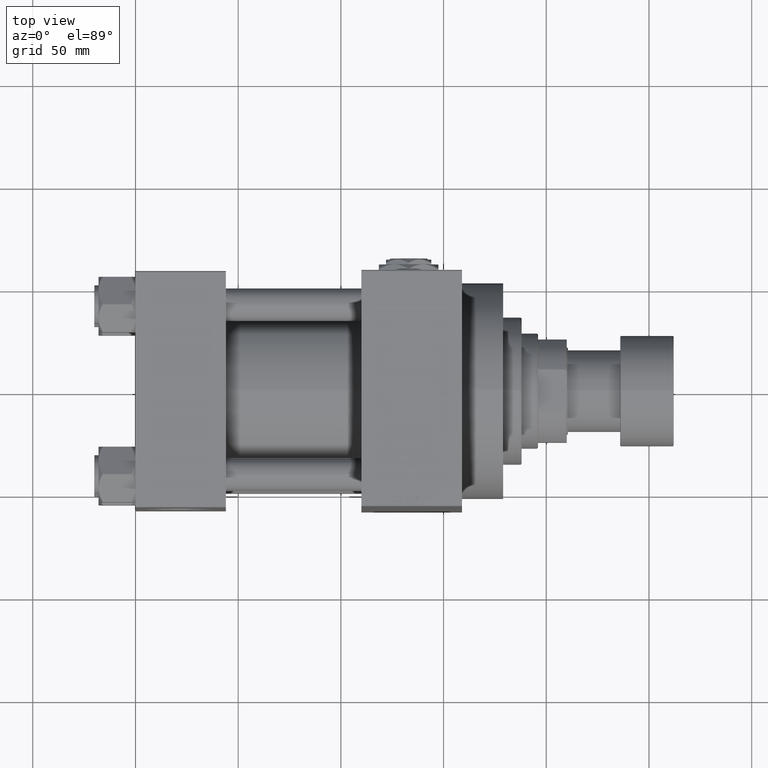
[diagram: clean part render]
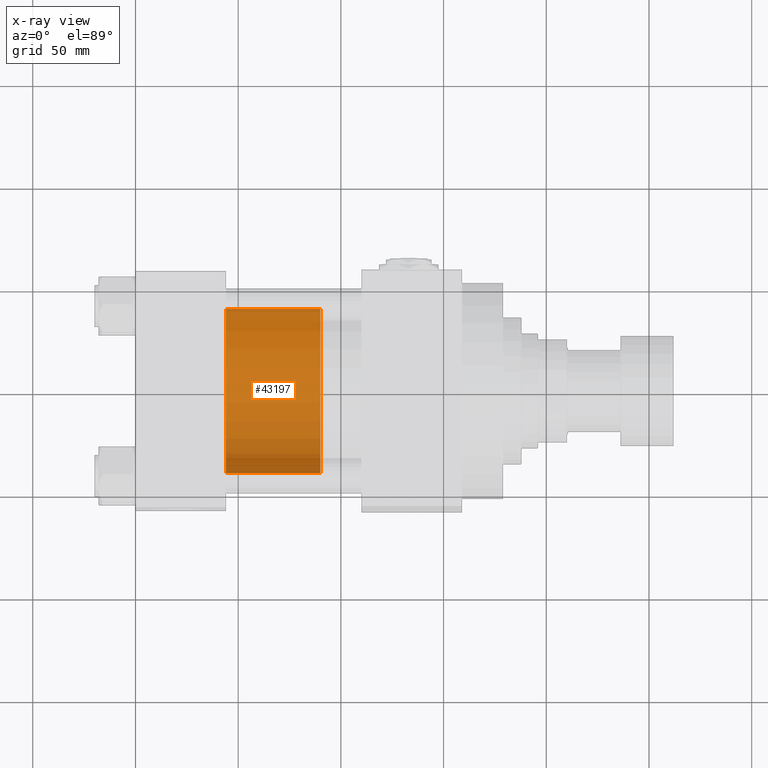
[diagram: x-ray — body ghosted, one internal face saturated and labeled with its STEP entity id]
A machine part, top view, then the same camera in x-ray: the body is ghosted and one INTERNAL B-rep face — a face not visible from any outside direction — is saturated and labeled: STEP entity #43197.
In plain terms, the highlighted cylindrical surface (partial cylindrical patch) has radius 40 mm, axis along (-1, 0, 0).
Its self-contained STEP definition (entity closure, byte-faithful):
#3402 = VECTOR ( 'NONE', #5607, 1000.000000000000000 ) ;
#4189 = DIRECTION ( 'NONE',  ( 0.000000000000000000, 0.000000000000000000, 1.000000000000000000 ) ) ;
#4782 = EDGE_CURVE ( 'NONE', #31541, #35425, #18306, .T. ) ;
#5051 = CARTESIAN_POINT ( 'NONE',  ( 0.000000000000000000, 0.000000000000000000, 46.00000000000000000 ) ) ;
#5607 = DIRECTION ( 'NONE',  ( -0.000000000000000000, -0.000000000000000000, -1.000000000000000000 ) ) ;
#5726 = VERTEX_POINT ( 'NONE', #45398 ) ;
#6033 = CARTESIAN_POINT ( 'NONE',  ( -40.00000000000000000, 0.000000000000000000, 46.00000000000000000 ) ) ;
#8475 = DIRECTION ( 'NONE',  ( 1.000000000000000000, 0.000000000000000000, 0.000000000000000000 ) ) ;
#8770 = EDGE_CURVE ( 'NONE', #5726, #31541, #44770, .T. ) ;
#8833 = CYLINDRICAL_SURFACE ( 'NONE', #36924, 40.00000000000000000 ) ;
#10197 = CIRCLE ( 'NONE', #27001, 40.00000000000000000 ) ;
#11528 = CARTESIAN_POINT ( 'NONE',  ( 40.00000000000000000, 4.898587196589413026E-15, 0.000000000000000000 ) ) ;
#11705 = VERTEX_POINT ( 'NONE', #11528 ) ;
#12068 = DIRECTION ( 'NONE',  ( 0.000000000000000000, 0.000000000000000000, 1.000000000000000000 ) ) ;
#13053 = DIRECTION ( 'NONE',  ( 1.000000000000000000, 0.000000000000000000, 0.000000000000000000 ) ) ;
#15221 = ORIENTED_EDGE ( 'NONE', *, *, #4782, .F. ) ;
#18306 = LINE ( 'NONE', #6033, #32589 ) ;
#20115 = CARTESIAN_POINT ( 'NONE',  ( -40.00000000000000000, 0.000000000000000000, 46.00000000000000000 ) ) ;
#20350 = DIRECTION ( 'NONE',  ( -1.000000000000000000, 0.000000000000000000, 0.000000000000000000 ) ) ;
#20665 = LINE ( 'NONE', #47500, #3402 ) ;
#23754 = CARTESIAN_POINT ( 'NONE',  ( 0.000000000000000000, 0.000000000000000000, 0.000000000000000000 ) ) ;
#24364 = DIRECTION ( 'NONE',  ( -0.000000000000000000, -0.000000000000000000, -1.000000000000000000 ) ) ;
#25843 = ORIENTED_EDGE ( 'NONE', *, *, #46247, .T. ) ;
#27001 = AXIS2_PLACEMENT_3D ( 'NONE', #23754, #4189, #8475 ) ;
#27604 = CARTESIAN_POINT ( 'NONE',  ( 0.000000000000000000, 0.000000000000000000, 46.00000000000000000 ) ) ;
#31541 = VERTEX_POINT ( 'NONE', #20115 ) ;
#32589 = VECTOR ( 'NONE', #44653, 1000.000000000000000 ) ;
#34471 = EDGE_CURVE ( 'NONE', #11705, #35425, #10197, .T. ) ;
#35425 = VERTEX_POINT ( 'NONE', #44261 ) ;
#36924 = AXIS2_PLACEMENT_3D ( 'NONE', #5051, #24364, #20350 ) ;
#42935 = FACE_OUTER_BOUND ( 'NONE', #46249, .T. ) ;
#43197 = ADVANCED_FACE ( 'NONE', ( #42935 ), #8833, .T. ) ;
#43354 = ORIENTED_EDGE ( 'NONE', *, *, #8770, .F. ) ;
#44261 = CARTESIAN_POINT ( 'NONE',  ( -40.00000000000000000, 0.000000000000000000, 0.000000000000000000 ) ) ;
#44653 = DIRECTION ( 'NONE',  ( -0.000000000000000000, -0.000000000000000000, -1.000000000000000000 ) ) ;
#44770 = CIRCLE ( 'NONE', #45548, 40.00000000000000000 ) ;
#44884 = ORIENTED_EDGE ( 'NONE', *, *, #34471, .T. ) ;
#45398 = CARTESIAN_POINT ( 'NONE',  ( 40.00000000000000000, 4.898587196589413026E-15, 46.00000000000000000 ) ) ;
#45548 = AXIS2_PLACEMENT_3D ( 'NONE', #27604, #12068, #13053 ) ;
#46247 = EDGE_CURVE ( 'NONE', #5726, #11705, #20665, .T. ) ;
#46249 = EDGE_LOOP ( 'NONE', ( #43354, #25843, #44884, #15221 ) ) ;
#47500 = CARTESIAN_POINT ( 'NONE',  ( 40.00000000000000000, 4.898587196589413026E-15, 46.00000000000000000 ) ) ;